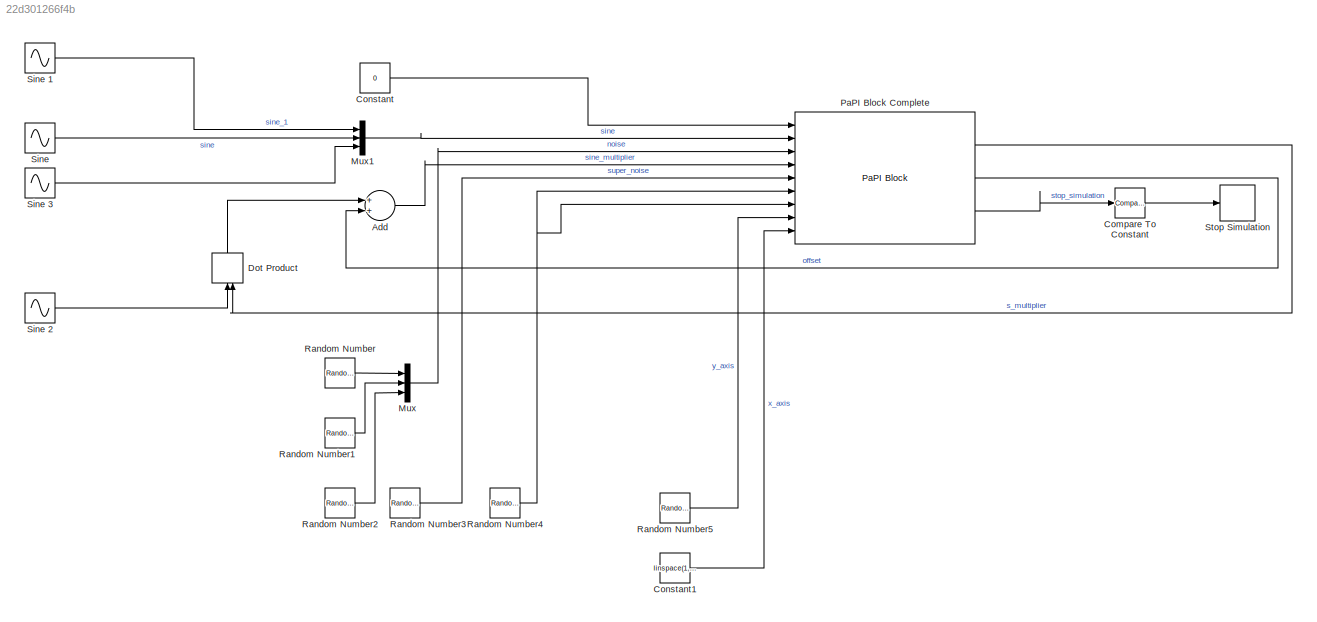
MODEL slx_22d301266f4b
KIND model
BLOCK [Sum] Add
  InputSameDT = off
  OutDataTypeStr = Inherit: Inherit via internal rule
  Ports = [2, 1]
  SaturateOnIntegerOverflow = off
BLOCK [Reference] Compare To Constant  REF=simulink/Logic and Bit
Operations/Compare
To Constant
  OutDataTypeStr = boolean
  Ports = [1, 1]
  SourceBlock = simulink/Logic and Bit\nOperations/Compare\nTo Constant
  SourceType = Compare To Constant
  ZeroCross = on
  const = 1
  relop = ==
BLOCK [Constant] Constant
  OutDataTypeStr = int32
  Value = 0
BLOCK [Constant] Constant1
  OutDataTypeStr = double
  Value = linspace(1,100,190)
BLOCK [DotProduct] Dot Product
  OutDataTypeStr = Inherit: Inherit via internal rule
BLOCK [Mux] Mux
  DisplayOption = bar
  Inputs = 3
  Ports = [3, 1]
BLOCK [Mux] Mux1
  DisplayOption = bar
  Inputs = 3
  Ports = [3, 1]
BLOCK [Reference] PaPI Block Complete  REF=PaPI/PaPI Block
  Ports = [9, 3]
  SourceBlock = PaPI/PaPI Block
  SourceType = PaPI Block Complete
  UDPLocalPort = 20001
  UDPRemoteIP = '127.0.0.1'
  UDPRemotePort = 20000
  UDPStart = on
  amount_parameters = [1,1,1]
  define_inputs = [3,3,1,300,2000,2000,190,190]
  external_file = './simulink_example_config.json'
  json_string = fileread('./simulink_example_config.json')
  sampleTime = -1
  split_inputs = [1,1,1,0,0,0,0,0]
  use_external_file = on
BLOCK [RandomNumber] Random Number
  SampleTime = 0.1
  Variance = 2
BLOCK [RandomNumber] Random Number1
  SampleTime = 0.1
  Variance = 3
BLOCK [RandomNumber] Random Number2
  SampleTime = 0.1
  Variance = 4
BLOCK [RandomNumber] Random Number3
  Mean = ones(1,300)
  SampleTime = 0.1
  Seed = linspace(1,300,300)
  Variance = ones(1,300)*4
  VectorParams1D = off
BLOCK [RandomNumber] Random Number4
  Mean = ones(1,2000)
  SampleTime = 0.1
  Seed = linspace(1,2000,2000)
  Variance = ones(1,2000)*4
  VectorParams1D = off
BLOCK [RandomNumber] Random Number5
  Mean = ones(1,190)
  SampleTime = 0.1
  Seed = linspace(1,190,190)
  Variance = ones(1,190)*5
  VectorParams1D = off
BLOCK [Sin] Sine
  Amplitude = 5
  Ports = [0, 1]
BLOCK [Sin] Sine 1
  Amplitude = 3
  Ports = [0, 1]
BLOCK [Sin] Sine 2
  Amplitude = 0.1
  Frequency = 2
  Ports = [0, 1]
BLOCK [Sin] Sine 3
  Amplitude = 3
  Frequency = 5
  Ports = [0, 1]
BLOCK [Stop] Stop Simulation
LINE Add:1 -> PaPI Block Complete:4
LINE Compare To Constant:1 -> Stop Simulation:1
LINE Constant1:1 -> PaPI Block Complete:9
LINE Constant:1 -> PaPI Block Complete:1
LINE Dot Product:1 -> Add:1
LINE Mux1:1 -> PaPI Block Complete:2
LINE Mux:1 -> PaPI Block Complete:3
LINE PaPI Block Complete:1 -> Dot Product:2
LINE PaPI Block Complete:2 -> Add:2
LINE PaPI Block Complete:3 -> Compare To Constant:1
LINE Random Number1:1 -> Mux:2
LINE Random Number2:1 -> Mux:3
LINE Random Number3:1 -> PaPI Block Complete:5
NET Random Number4:1 -> PaPI Block Complete:6, PaPI Block Complete:7
LINE Random Number5:1 -> PaPI Block Complete:8
LINE Random Number:1 -> Mux:1
LINE Sine 1:1 -> Mux1:1
LINE Sine 2:1 -> Dot Product:1
LINE Sine 3:1 -> Mux1:3
LINE Sine:1 -> Mux1:2
note: NET lines group one-source signal fan-out (src -> all destinations, sorted); 1:1 wires keep LINE
